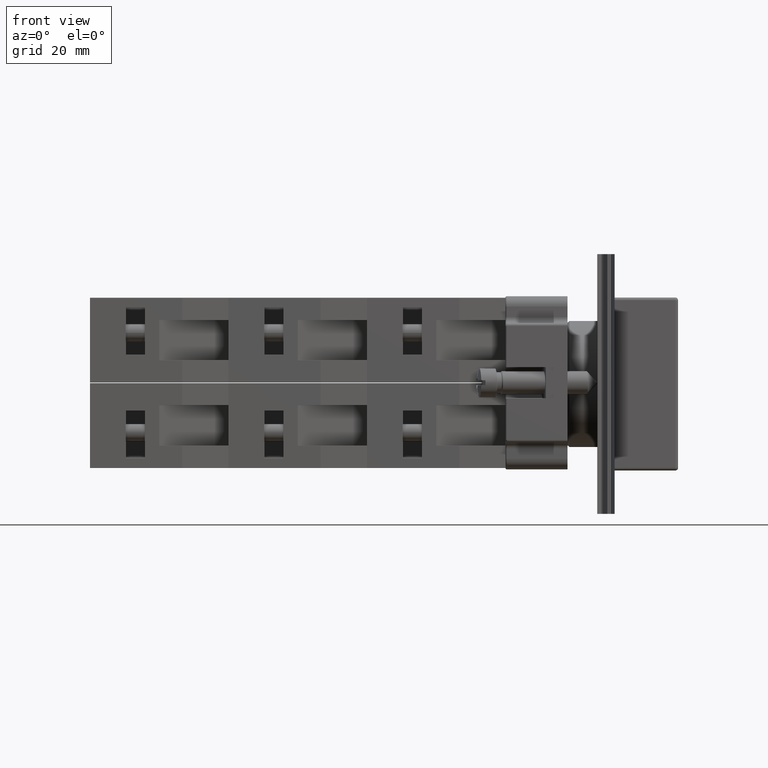
[diagram: clean part render]
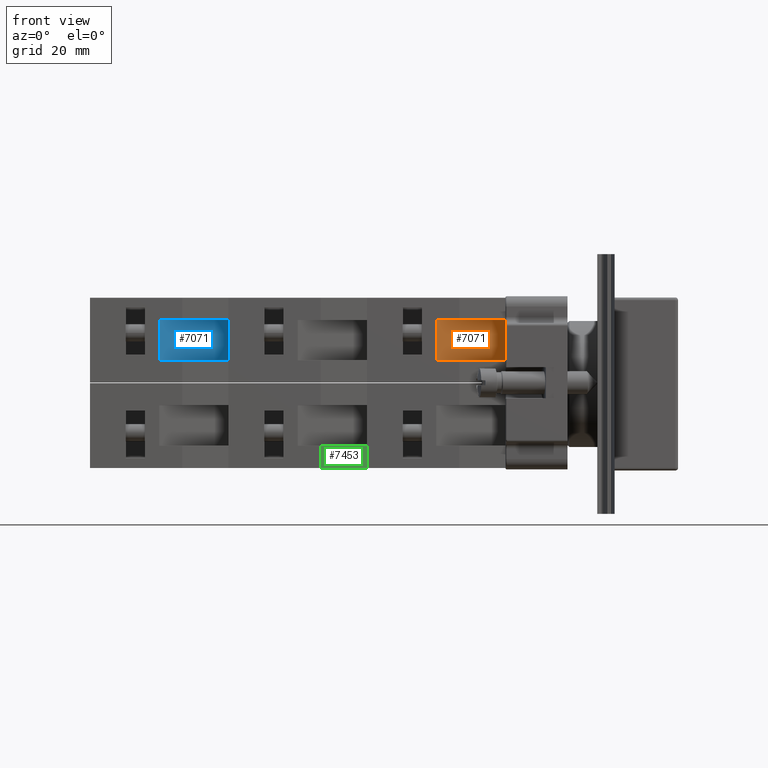
[diagram: same view with three faces highlighted in distinct colors, each labeled with its STEP entity id]
A machine part, front view with three faces highlighted in distinct colors.
Their STEP definitions:

[orange] entity #7071 — the highlighted face is a freeform B-spline surface patch.
#7016=CARTESIAN_POINT('',(-44.936741828918457,11.797073323279610,10.850000000000000));
#7017=VERTEX_POINT('',#7016);
#7024=CARTESIAN_POINT('',(-35.936741828918450,-0.202926676720384,10.850000000000000));
#7025=VERTEX_POINT('',#7024);
#7026=CARTESIAN_POINT('',(-35.936741828918450,-0.202926676720384,10.850000000000000));
#7027=DIRECTION('',(-0.600000000000000,0.800000000000000,0.0));
#7028=VECTOR('',#7027,15.0);
#7029=LINE('',#7026,#7028);
#7030=EDGE_CURVE('',#7025,#7017,#7029,.T.);
#7041=CARTESIAN_POINT('',(-44.936741828918464,11.797073323279616,3.850000000000000));
#7042=CARTESIAN_POINT('',(-44.936741828918464,11.797073323279616,10.850000000000001));
#7043=CARTESIAN_POINT('',(-35.936741828918443,-0.202926676720384,3.850000000000000));
#7044=CARTESIAN_POINT('',(-35.936741828918450,-0.202926676720384,10.850000000000001));
#7045=B_SPLINE_SURFACE_WITH_KNOTS('',1,1,((#7041,#7043),(#7042,#7044)),.UNSPECIFIED.,.F.,.F.,.U.,(2,2),(2,2),(0.0,7.000000000000002),(0.0,15.000000000000012),.UNSPECIFIED.);
#7046=CARTESIAN_POINT('',(-44.936741828918457,11.797073323279610,3.850000000000001));
#7047=VERTEX_POINT('',#7046);
#7048=CARTESIAN_POINT('',(-35.936741828918450,-0.202926676720384,3.850000000000001));
#7049=VERTEX_POINT('',#7048);
#7050=CARTESIAN_POINT('',(-44.936741828918457,11.797073323279610,3.850000000000001));
#7051=DIRECTION('',(0.600000000000000,-0.800000000000000,0.0));
#7052=VECTOR('',#7051,15.0);
#7053=LINE('',#7050,#7052);
#7054=EDGE_CURVE('',#7047,#7049,#7053,.T.);
#7055=ORIENTED_EDGE('',*,*,#7054,.T.);
#7056=CARTESIAN_POINT('',(-35.936741828918450,-0.202926676720384,10.850000000000000));
#7057=DIRECTION('',(0.0,0.0,-1.0));
#7058=VECTOR('',#7057,6.999999999999999);
#7059=LINE('',#7056,#7058);
#7060=EDGE_CURVE('',#7025,#7049,#7059,.T.);
#7061=ORIENTED_EDGE('',*,*,#7060,.F.);
#7062=ORIENTED_EDGE('',*,*,#7030,.T.);
#7063=CARTESIAN_POINT('',(-44.936741828918457,11.797073323279610,3.850000000000001));
#7064=DIRECTION('',(0.0,0.0,1.0));
#7065=VECTOR('',#7064,6.999999999999999);
#7066=LINE('',#7063,#7065);
#7067=EDGE_CURVE('',#7047,#7017,#7066,.T.);
#7068=ORIENTED_EDGE('',*,*,#7067,.F.);
#7069=EDGE_LOOP('',(#7055,#7061,#7062,#7068));
#7070=FACE_OUTER_BOUND('',#7069,.T.);
#7071=ADVANCED_FACE('',(#7070),#7045,.F.);

[blue] entity #7071 — the highlighted face is a freeform B-spline surface patch.
#7016=CARTESIAN_POINT('',(-44.936741828918457,11.797073323279610,10.850000000000000));
#7017=VERTEX_POINT('',#7016);
#7024=CARTESIAN_POINT('',(-35.936741828918450,-0.202926676720384,10.850000000000000));
#7025=VERTEX_POINT('',#7024);
#7026=CARTESIAN_POINT('',(-35.936741828918450,-0.202926676720384,10.850000000000000));
#7027=DIRECTION('',(-0.600000000000000,0.800000000000000,0.0));
#7028=VECTOR('',#7027,15.0);
#7029=LINE('',#7026,#7028);
#7030=EDGE_CURVE('',#7025,#7017,#7029,.T.);
#7041=CARTESIAN_POINT('',(-44.936741828918464,11.797073323279616,3.850000000000000));
#7042=CARTESIAN_POINT('',(-44.936741828918464,11.797073323279616,10.850000000000001));
#7043=CARTESIAN_POINT('',(-35.936741828918443,-0.202926676720384,3.850000000000000));
#7044=CARTESIAN_POINT('',(-35.936741828918450,-0.202926676720384,10.850000000000001));
#7045=B_SPLINE_SURFACE_WITH_KNOTS('',1,1,((#7041,#7043),(#7042,#7044)),.UNSPECIFIED.,.F.,.F.,.U.,(2,2),(2,2),(0.0,7.000000000000002),(0.0,15.000000000000012),.UNSPECIFIED.);
#7046=CARTESIAN_POINT('',(-44.936741828918457,11.797073323279610,3.850000000000001));
#7047=VERTEX_POINT('',#7046);
#7048=CARTESIAN_POINT('',(-35.936741828918450,-0.202926676720384,3.850000000000001));
#7049=VERTEX_POINT('',#7048);
#7050=CARTESIAN_POINT('',(-44.936741828918457,11.797073323279610,3.850000000000001));
#7051=DIRECTION('',(0.600000000000000,-0.800000000000000,0.0));
#7052=VECTOR('',#7051,15.0);
#7053=LINE('',#7050,#7052);
#7054=EDGE_CURVE('',#7047,#7049,#7053,.T.);
#7055=ORIENTED_EDGE('',*,*,#7054,.T.);
#7056=CARTESIAN_POINT('',(-35.936741828918450,-0.202926676720384,10.850000000000000));
#7057=DIRECTION('',(0.0,0.0,-1.0));
#7058=VECTOR('',#7057,6.999999999999999);
#7059=LINE('',#7056,#7058);
#7060=EDGE_CURVE('',#7025,#7049,#7059,.T.);
#7061=ORIENTED_EDGE('',*,*,#7060,.F.);
#7062=ORIENTED_EDGE('',*,*,#7030,.T.);
#7063=CARTESIAN_POINT('',(-44.936741828918457,11.797073323279610,3.850000000000001));
#7064=DIRECTION('',(0.0,0.0,1.0));
#7065=VECTOR('',#7064,6.999999999999999);
#7066=LINE('',#7063,#7065);
#7067=EDGE_CURVE('',#7047,#7017,#7066,.T.);
#7068=ORIENTED_EDGE('',*,*,#7067,.F.);
#7069=EDGE_LOOP('',(#7055,#7061,#7062,#7068));
#7070=FACE_OUTER_BOUND('',#7069,.T.);
#7071=ADVANCED_FACE('',(#7070),#7045,.F.);

[green] entity #7453 — the highlighted planar face has unit normal (0.1843, -0.9829, -0).
#7215=CARTESIAN_POINT('',(-17.436741828918457,-0.202926676720378,10.850000000000000));
#7216=VERTEX_POINT('',#7215);
#7217=CARTESIAN_POINT('',(-15.936741828918466,7.797073323279626,10.850000000000000));
#7218=VERTEX_POINT('',#7217);
#7219=CARTESIAN_POINT('',(-17.436741828918457,-0.202926676720378,10.850000000000000));
#7220=DIRECTION('',(0.184288535050184,0.982872186934322,0.0));
#7221=VECTOR('',#7220,8.139410298049855);
#7222=LINE('',#7219,#7221);
#7223=EDGE_CURVE('',#7216,#7218,#7222,.T.);
#7343=CARTESIAN_POINT('',(-17.436741828918457,-0.202926676720377,14.699999999999999));
#7344=VERTEX_POINT('',#7343);
#7345=CARTESIAN_POINT('',(-17.436741828918457,-0.202926676720378,10.850000000000000));
#7346=DIRECTION('',(0.0,0.0,1.0));
#7347=VECTOR('',#7346,3.850000000000000);
#7348=LINE('',#7345,#7347);
#7349=EDGE_CURVE('',#7216,#7344,#7348,.T.);
#7430=CARTESIAN_POINT('',(-15.936741828918466,7.797073323279626,0.0));
#7431=DIRECTION('',(0.982872186934322,-0.184288535050184,0.0));
#7432=DIRECTION('',(0.0,0.0,-1.0));
#7433=AXIS2_PLACEMENT_3D('',#7430,#7431,#7432);
#7434=PLANE('',#7433);
#7435=ORIENTED_EDGE('',*,*,#7223,.T.);
#7436=CARTESIAN_POINT('',(-15.936741828918466,7.797073323279626,14.699999999999999));
#7437=VERTEX_POINT('',#7436);
#7438=CARTESIAN_POINT('',(-15.936741828918466,7.797073323279626,10.850000000000000));
#7439=DIRECTION('',(0.0,0.0,1.0));
#7440=VECTOR('',#7439,3.850000000000000);
#7441=LINE('',#7438,#7440);
#7442=EDGE_CURVE('',#7218,#7437,#7441,.T.);
#7443=ORIENTED_EDGE('',*,*,#7442,.T.);
#7444=CARTESIAN_POINT('',(-15.936741828918466,7.797073323279626,14.699999999999999));
#7445=DIRECTION('',(-0.184288535050184,-0.982872186934322,0.0));
#7446=VECTOR('',#7445,8.139410298049855);
#7447=LINE('',#7444,#7446);
#7448=EDGE_CURVE('',#7437,#7344,#7447,.T.);
#7449=ORIENTED_EDGE('',*,*,#7448,.T.);
#7450=ORIENTED_EDGE('',*,*,#7349,.F.);
#7451=EDGE_LOOP('',(#7435,#7443,#7449,#7450));
#7452=FACE_OUTER_BOUND('',#7451,.T.);
#7453=ADVANCED_FACE('',(#7452),#7434,.T.);